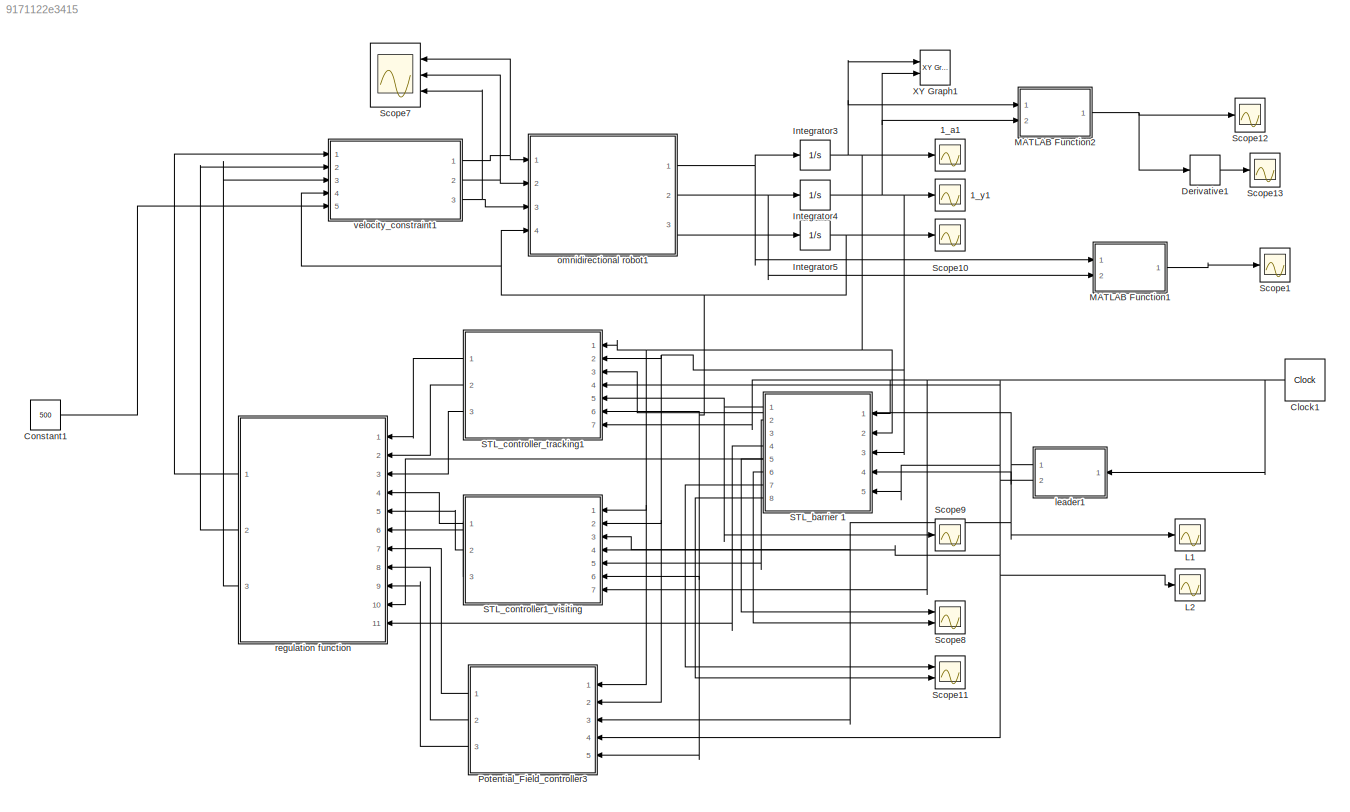
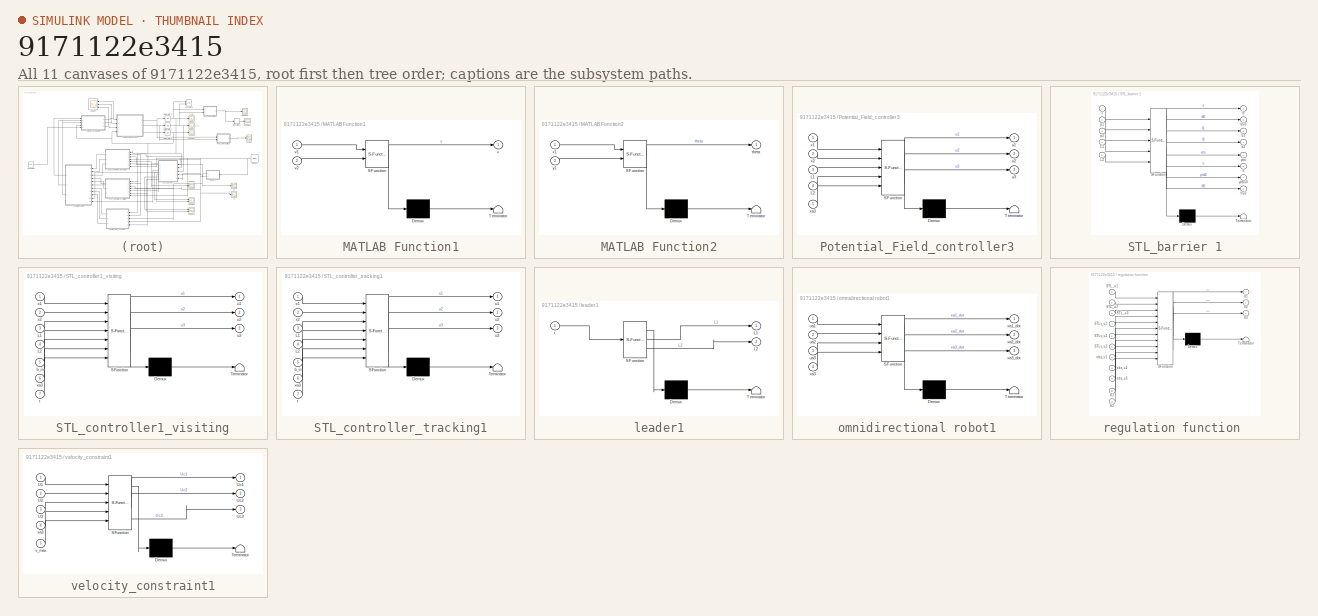
[diagram: thumbnail index - all 11 canvases of the model, root first then tree order]
MODEL slx_9171122e3415
KIND model
CONFIG AbsTol = auto
CONFIG EnableMultiTasking = off
CONFIG FixedStep = 1e-2
CONFIG MaxStep = auto
CONFIG MinStep = auto
CONFIG RelTol = 1e-3
CONFIG SampleTimeConstraint = Unconstrained
CONFIG Solver = FixedStepAuto
CONFIG SolverName = FixedStepAuto
CONFIG StartTime = 0.0
CONFIG StopTime = 60.0
BLOCK [Scope] 1_a1
  Floating = off
  NumInputPorts = 1
  Ports = [1]
  ScopeSpecificationString = Simulink.scopes.TimeScopeBlockCfg('CurrentConfiguration', extmgr.ConfigurationSet(extmgr.Configuration('Core','General UI',true),extmgr.Configuration('Core','Source UI',true),extmgr.Configuration('Sources','WiredSimulink',true,'DataLogging',true,'DataLoggingVariableName','x1','DataLoggingSaveFormat','StructureWithTime'),extmgr.Configuration('Visuals','Time Domain',true,'SerializedDisplays',{struct...<+1475ch>
BLOCK [Scope] 1_y1
  Floating = off
  NumInputPorts = 1
  Ports = [1]
  ScopeSpecificationString = Simulink.scopes.TimeScopeBlockCfg('CurrentConfiguration', extmgr.ConfigurationSet(extmgr.Configuration('Core','General UI',true),extmgr.Configuration('Core','Source UI',true),extmgr.Configuration('Sources','WiredSimulink',true,'DataLoggingVariableName','x2','DataLogging',true,'DataLoggingSaveFormat','StructureWithTime'),extmgr.Configuration('Visuals','Time Domain',true,'SerializedDisplays',{struct...<+1471ch>
BLOCK [Clock] Clock1
  DisplayTime = on
BLOCK [Constant] Constant1
  Value = 500
BLOCK [Derivative] Derivative1
BLOCK [Integrator] Integrator3
  Ports = [1, 1]
BLOCK [Integrator] Integrator4
  InitialCondition = 5
  Ports = [1, 1]
BLOCK [Integrator] Integrator5
  Ports = [1, 1]
BLOCK [Scope] L1
  Floating = off
  NumInputPorts = 1
  Ports = [1]
  ScopeSpecificationString = Simulink.scopes.TimeScopeBlockCfg('CurrentConfiguration', extmgr.ConfigurationSet(extmgr.Configuration('Core','General UI',true),extmgr.Configuration('Core','Source UI',true),extmgr.Configuration('Sources','WiredSimulink',true,'DataLoggingVariableName','L1','DataLogging',true,'DataLoggingSaveFormat','StructureWithTime'),extmgr.Configuration('Visuals','Time Domain',true,'SerializedDisplays',{struct...<+1443ch>
BLOCK [Scope] L2
  Floating = off
  NumInputPorts = 1
  Ports = [1]
  ScopeSpecificationString = Simulink.scopes.TimeScopeBlockCfg('CurrentConfiguration', extmgr.ConfigurationSet(extmgr.Configuration('Core','General UI',true),extmgr.Configuration('Core','Source UI',true),extmgr.Configuration('Sources','WiredSimulink',true,'DataLoggingVariableName','L2','DataLogging',true,'DataLoggingSaveFormat','StructureWithTime'),extmgr.Configuration('Visuals','Time Domain',true,'SerializedDisplays',{struct...<+1406ch>
BLOCK [SubSystem] MATLAB Function1
  ErrorFcn = Stateflow.Translate.translate
  PermitHierarchicalResolution = ExplicitOnly
  Ports = [2, 1]
  RequestExecContextInheritance = off
  SFBlockType = MATLAB Function
  TreatAsAtomicUnit = on
BLOCK [Demux] MATLAB Function1/ Demux 
  Outputs = 1
  Ports = [1, 1]
BLOCK [S-Function] MATLAB Function1/ SFunction 
  EnableBusSupport = on
  FunctionName = sf_sfun
  PortCounts = [2 2]
  Ports = [2, 2]
  SFcnIsStateOwnerBlock = off
  SFunctionDeploymentMode = off
  Tag = Stateflow S-Function scenario_2_TIV_R2019a 20
BLOCK [Terminator] MATLAB Function1/ Terminator 
BLOCK [Outport] MATLAB Function1/v
  VectorParamsAs1DForOutWhenUnconnected = off
BLOCK [Inport] MATLAB Function1/v1
BLOCK [Inport] MATLAB Function1/v2
  Port = 2
BLOCK [SubSystem] MATLAB Function2
  ErrorFcn = Stateflow.Translate.translate
  PermitHierarchicalResolution = ExplicitOnly
  Ports = [2, 1]
  RequestExecContextInheritance = off
  SFBlockType = MATLAB Function
  TreatAsAtomicUnit = on
BLOCK [Demux] MATLAB Function2/ Demux 
  Outputs = 1
  Ports = [1, 1]
BLOCK [S-Function] MATLAB Function2/ SFunction 
  EnableBusSupport = on
  FunctionName = sf_sfun
  PortCounts = [2 2]
  Ports = [2, 2]
  SFcnIsStateOwnerBlock = off
  SFunctionDeploymentMode = off
  Tag = Stateflow S-Function scenario_2_TIV_R2019a 43
BLOCK [Terminator] MATLAB Function2/ Terminator 
BLOCK [Outport] MATLAB Function2/theta
  VectorParamsAs1DForOutWhenUnconnected = off
BLOCK [Inport] MATLAB Function2/x1
BLOCK [Inport] MATLAB Function2/y1
  Port = 2
BLOCK [SubSystem] Potential_Field_controller3
  ErrorFcn = Stateflow.Translate.translate
  PermitHierarchicalResolution = ExplicitOnly
  Ports = [5, 3]
  RequestExecContextInheritance = off
  SFBlockType = MATLAB Function
  TreatAsAtomicUnit = on
BLOCK [Demux] Potential_Field_controller3/ Demux 
  Outputs = 1
  Ports = [1, 1]
BLOCK [S-Function] Potential_Field_controller3/ SFunction 
  EnableBusSupport = on
  FunctionName = sf_sfun
  PortCounts = [5 4]
  Ports = [5, 4]
  SFcnIsStateOwnerBlock = off
  SFunctionDeploymentMode = off
  Tag = Stateflow S-Function scenario_2_TIV_R2019a 44
BLOCK [Terminator] Potential_Field_controller3/ Terminator 
BLOCK [Inport] Potential_Field_controller3/L1
  Port = 3
BLOCK [Inport] Potential_Field_controller3/L2
  Port = 4
BLOCK [Outport] Potential_Field_controller3/u1
BLOCK [Outport] Potential_Field_controller3/u2
  Port = 2
BLOCK [Outport] Potential_Field_controller3/u3
  Port = 3
BLOCK [Inport] Potential_Field_controller3/x1
BLOCK [Inport] Potential_Field_controller3/x2
  Port = 2
BLOCK [Inport] Potential_Field_controller3/xa3
  Port = 5
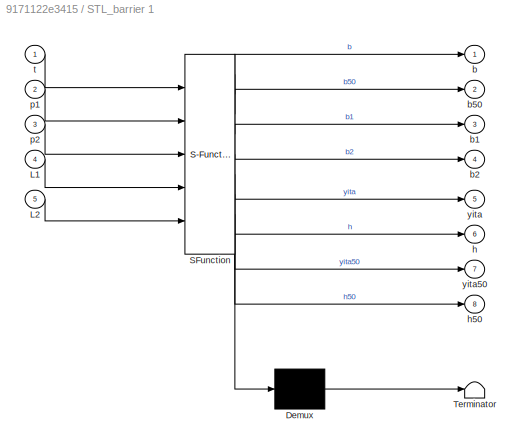
BLOCK [SubSystem] STL_barrier 1
  ErrorFcn = Stateflow.Translate.translate
  PermitHierarchicalResolution = ExplicitOnly
  Ports = [5, 8]
  RequestExecContextInheritance = off
  SFBlockType = MATLAB Function
  TreatAsAtomicUnit = on
BLOCK [Demux] STL_barrier 1/ Demux 
  Outputs = 1
  Ports = [1, 1]
BLOCK [S-Function] STL_barrier 1/ SFunction 
  EnableBusSupport = on
  FunctionName = sf_sfun
  PortCounts = [5 9]
  Ports = [5, 9]
  SFcnIsStateOwnerBlock = off
  SFunctionDeploymentMode = off
  Tag = Stateflow S-Function scenario_2_TIV_R2019a 45
BLOCK [Terminator] STL_barrier 1/ Terminator 
BLOCK [Inport] STL_barrier 1/L1
  Port = 4
BLOCK [Inport] STL_barrier 1/L2
  Port = 5
BLOCK [Outport] STL_barrier 1/b
BLOCK [Outport] STL_barrier 1/b1
  Port = 3
BLOCK [Outport] STL_barrier 1/b2
  Port = 4
BLOCK [Outport] STL_barrier 1/b50
  Port = 2
BLOCK [Outport] STL_barrier 1/h
  Port = 6
  VectorParamsAs1DForOutWhenUnconnected = off
BLOCK [Outport] STL_barrier 1/h50
  Port = 8
BLOCK [Inport] STL_barrier 1/p1
  Port = 2
BLOCK [Inport] STL_barrier 1/p2
  Port = 3
BLOCK [Inport] STL_barrier 1/t
BLOCK [Outport] STL_barrier 1/yita
  Port = 5
  VectorParamsAs1DForOutWhenUnconnected = off
BLOCK [Outport] STL_barrier 1/yita50
  Port = 7
BLOCK [SubSystem] STL_controller1_visiting
  ErrorFcn = Stateflow.Translate.translate
  PermitHierarchicalResolution = ExplicitOnly
  Ports = [7, 3]
  RequestExecContextInheritance = off
  SFBlockType = MATLAB Function
  TreatAsAtomicUnit = on
BLOCK [Demux] STL_controller1_visiting/ Demux 
  Outputs = 1
  Ports = [1, 1]
BLOCK [S-Function] STL_controller1_visiting/ SFunction 
  EnableBusSupport = on
  FunctionName = sf_sfun
  PortCounts = [7 4]
  Ports = [7, 4]
  SFcnIsStateOwnerBlock = off
  SFunctionDeploymentMode = off
  Tag = Stateflow S-Function scenario_2_TIV_R2019a 46
BLOCK [Terminator] STL_controller1_visiting/ Terminator 
BLOCK [Inport] STL_controller1_visiting/L1
  Port = 3
BLOCK [Inport] STL_controller1_visiting/L2
  Port = 4
BLOCK [Inport] STL_controller1_visiting/b_in
  Port = 5
BLOCK [Inport] STL_controller1_visiting/t
  Port = 7
BLOCK [Outport] STL_controller1_visiting/u1
BLOCK [Outport] STL_controller1_visiting/u2
  Port = 2
BLOCK [Outport] STL_controller1_visiting/u3
  Port = 3
BLOCK [Inport] STL_controller1_visiting/x1
BLOCK [Inport] STL_controller1_visiting/x2
  Port = 2
BLOCK [Inport] STL_controller1_visiting/xa3
  Port = 6
BLOCK [SubSystem] STL_controller_tracking1
  ErrorFcn = Stateflow.Translate.translate
  PermitHierarchicalResolution = ExplicitOnly
  Ports = [7, 3]
  RequestExecContextInheritance = off
  SFBlockType = MATLAB Function
  TreatAsAtomicUnit = on
BLOCK [Demux] STL_controller_tracking1/ Demux 
  Outputs = 1
  Ports = [1, 1]
BLOCK [S-Function] STL_controller_tracking1/ SFunction 
  EnableBusSupport = on
  FunctionName = sf_sfun
  PortCounts = [7 4]
  Ports = [7, 4]
  SFcnIsStateOwnerBlock = off
  SFunctionDeploymentMode = off
  Tag = Stateflow S-Function scenario_2_TIV_R2019a 47
BLOCK [Terminator] STL_controller_tracking1/ Terminator 
BLOCK [Inport] STL_controller_tracking1/L1
  Port = 3
BLOCK [Inport] STL_controller_tracking1/L2
  Port = 4
BLOCK [Inport] STL_controller_tracking1/b_in
  Port = 5
BLOCK [Inport] STL_controller_tracking1/t
  Port = 7
BLOCK [Outport] STL_controller_tracking1/u1
BLOCK [Outport] STL_controller_tracking1/u2
  Port = 2
BLOCK [Outport] STL_controller_tracking1/u3
  Port = 3
BLOCK [Inport] STL_controller_tracking1/x1
BLOCK [Inport] STL_controller_tracking1/x2
  Port = 2
BLOCK [Inport] STL_controller_tracking1/xa3
  Port = 6
BLOCK [Scope] Scope1
  Floating = off
  NumInputPorts = 1
  Ports = [1]
  ScopeSpecificationString = Simulink.scopes.TimeScopeBlockCfg('CurrentConfiguration', extmgr.ConfigurationSet(extmgr.Configuration('Core','General UI',true),extmgr.Configuration('Core','Source UI',true),extmgr.Configuration('Sources','WiredSimulink',true,'DataLoggingVariableName','ScopeData1'),extmgr.Configuration('Visuals','Time Domain',true,'SerializedDisplays',{struct('MinYLimReal','-9.29684','MaxYLimReal','85.93095','YLa...<+1453ch>
BLOCK [Scope] Scope10
  Floating = off
  NumInputPorts = 1
  Ports = [1]
  ScopeSpecificationString = Simulink.scopes.TimeScopeBlockCfg('CurrentConfiguration', extmgr.ConfigurationSet(extmgr.Configuration('Core','General UI',true),extmgr.Configuration('Core','Source UI',true),extmgr.Configuration('Sources','WiredSimulink',true,'DataLoggingVariableName','ScopeData5'),extmgr.Configuration('Visuals','Time Domain',true,'SerializedDisplays',{struct('MinYLimReal','-0.50401','MaxYLimReal','4.53607','YLab...<+1448ch>
BLOCK [Scope] Scope11
  Floating = off
  NumInputPorts = 2
  Ports = [2]
  ScopeSpecificationString = Simulink.scopes.TimeScopeBlockCfg('CurrentConfiguration', extmgr.ConfigurationSet(extmgr.Configuration('Core','General UI',true),extmgr.Configuration('Core','Source UI',true),extmgr.Configuration('Sources','WiredSimulink',true,'DataLoggingVariableName','gamma_h_visiting','DataLogging',true,'DataLoggingSaveFormat','StructureWithTime'),extmgr.Configuration('Visuals','Time Domain',true,'SerializedDis...<+1615ch>
BLOCK [Scope] Scope12
  Floating = off
  NumInputPorts = 1
  Ports = [1]
  ScopeSpecificationString = Simulink.scopes.TimeScopeBlockCfg('CurrentConfiguration', extmgr.ConfigurationSet(extmgr.Configuration('Core','General UI',true),extmgr.Configuration('Core','Source UI',true),extmgr.Configuration('Sources','WiredSimulink',true,'DataLoggingVariableName','ScopeData7'),extmgr.Configuration('Visuals','Time Domain',true,'SerializedDisplays',{struct('MinYLimReal','-3.92673','MaxYLimReal','3.92487','YLab...<+1447ch>
BLOCK [Scope] Scope13
  Floating = off
  NumInputPorts = 1
  Ports = [1]
  ScopeSpecificationString = Simulink.scopes.TimeScopeBlockCfg('CurrentConfiguration', extmgr.ConfigurationSet(extmgr.Configuration('Core','General UI',true),extmgr.Configuration('Core','Source UI',true),extmgr.Configuration('Sources','WiredSimulink',true,'DataLoggingVariableName','ScopeData8'),extmgr.Configuration('Visuals','Time Domain',true,'SerializedDisplays',{struct('MinYLimReal','-80.8602','MaxYLimReal','705.90103','YL...<+1453ch>
BLOCK [Scope] Scope7
  Floating = off
  NumInputPorts = 3
  Ports = [3]
  ScopeSpecificationString = Simulink.scopes.TimeScopeBlockCfg('CurrentConfiguration', extmgr.ConfigurationSet(extmgr.Configuration('Core','General UI',true),extmgr.Configuration('Core','Source UI',true),extmgr.Configuration('Sources','WiredSimulink',true,'DataLoggingVariableName','U3','DataLogging',true,'DataLoggingSaveFormat','StructureWithTime'),extmgr.Configuration('Visuals','Time Domain',true,'SerializedDisplays',{struct...<+1609ch>
BLOCK [Scope] Scope8
  Floating = off
  NumInputPorts = 2
  Ports = [2]
  ScopeSpecificationString = Simulink.scopes.TimeScopeBlockCfg('CurrentConfiguration', extmgr.ConfigurationSet(extmgr.Configuration('Core','General UI',true),extmgr.Configuration('Core','Source UI',true),extmgr.Configuration('Sources','WiredSimulink',true,'DataLoggingVariableName','gamma_h_tracking','DataLogging',true,'DataLoggingSaveFormat','StructureWithTime'),extmgr.Configuration('Visuals','Time Domain',true,'SerializedDis...<+1860ch>
BLOCK [Scope] Scope9
  Floating = off
  NumInputPorts = 1
  Ports = [1]
  ScopeSpecificationString = Simulink.scopes.TimeScopeBlockCfg('CurrentConfiguration', extmgr.ConfigurationSet(extmgr.Configuration('Core','General UI',true),extmgr.Configuration('Core','Source UI',true),extmgr.Configuration('Sources','WiredSimulink',true),extmgr.Configuration('Visuals','Time Domain',true,'SerializedDisplays',{struct('MinYLimReal','-86.93912','MaxYLimReal','9.6599','YLabelReal','','MinYLimMag','0.00000','MaxY...<+1412ch>
BLOCK [Reference] XY Graph1  REF=simulink/Sinks/XY Graph
  Ports = [2]
  SourceBlock = simulink/Sinks/XY Graph
  SourceProductBaseCode = SL
  SourceType = XY scope.
BLOCK [SubSystem] leader1
  ErrorFcn = Stateflow.Translate.translate
  PermitHierarchicalResolution = ExplicitOnly
  Ports = [1, 2]
  RequestExecContextInheritance = off
  SFBlockType = MATLAB Function
  TreatAsAtomicUnit = on
BLOCK [Demux] leader1/ Demux 
  Outputs = 1
  Ports = [1, 1]
BLOCK [S-Function] leader1/ SFunction 
  EnableBusSupport = on
  FunctionName = sf_sfun
  PortCounts = [1 3]
  Ports = [1, 3]
  SFcnIsStateOwnerBlock = off
  SFunctionDeploymentMode = off
  Tag = Stateflow S-Function scenario_2_TIV_R2019a 48
BLOCK [Terminator] leader1/ Terminator 
BLOCK [Outport] leader1/L1
BLOCK [Outport] leader1/L2
  Port = 2
BLOCK [Inport] leader1/t
BLOCK [SubSystem] omnidirectional robot1
  ErrorFcn = Stateflow.Translate.translate
  PermitHierarchicalResolution = ExplicitOnly
  Ports = [4, 3]
  RequestExecContextInheritance = off
  SFBlockType = MATLAB Function
  TreatAsAtomicUnit = on
BLOCK [Demux] omnidirectional robot1/ Demux 
  Outputs = 1
  Ports = [1, 1]
BLOCK [S-Function] omnidirectional robot1/ SFunction 
  EnableBusSupport = on
  FunctionName = sf_sfun
  PortCounts = [4 4]
  Ports = [4, 4]
  SFcnIsStateOwnerBlock = off
  SFunctionDeploymentMode = off
  Tag = Stateflow S-Function scenario_2_TIV_R2019a 49
BLOCK [Terminator] omnidirectional robot1/ Terminator 
BLOCK [Inport] omnidirectional robot1/ua1
BLOCK [Inport] omnidirectional robot1/ua2
  Port = 2
BLOCK [Inport] omnidirectional robot1/ua3
  Port = 3
BLOCK [Outport] omnidirectional robot1/xa1_dot
BLOCK [Outport] omnidirectional robot1/xa2_dot
  Port = 2
BLOCK [Inport] omnidirectional robot1/xa3
  Port = 4
BLOCK [Outport] omnidirectional robot1/xa3_dot
  Port = 3
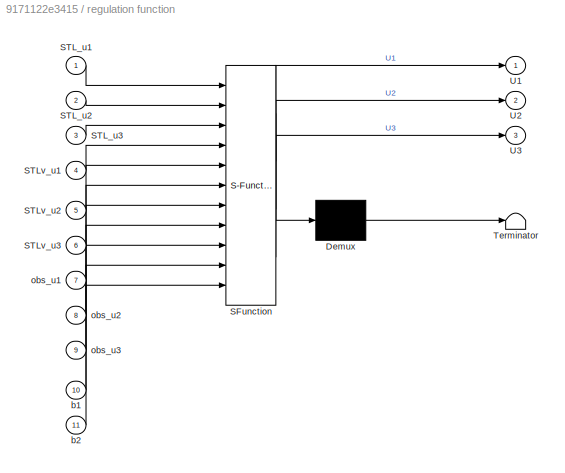
BLOCK [SubSystem] regulation function 
  ErrorFcn = Stateflow.Translate.translate
  PermitHierarchicalResolution = ExplicitOnly
  Ports = [11, 3]
  RequestExecContextInheritance = off
  SFBlockType = MATLAB Function
  TreatAsAtomicUnit = on
BLOCK [Demux] regulation function / Demux 
  Outputs = 1
  Ports = [1, 1]
BLOCK [S-Function] regulation function / SFunction 
  EnableBusSupport = on
  FunctionName = sf_sfun
  PortCounts = [11 4]
  Ports = [11, 4]
  SFcnIsStateOwnerBlock = off
  SFunctionDeploymentMode = off
  Tag = Stateflow S-Function scenario_2_TIV_R2019a 50
BLOCK [Terminator] regulation function / Terminator 
BLOCK [Inport] regulation function /STL_u1
BLOCK [Inport] regulation function /STL_u2
  Port = 2
BLOCK [Inport] regulation function /STL_u3
  Port = 3
BLOCK [Inport] regulation function /STLv_u1
  Port = 4
BLOCK [Inport] regulation function /STLv_u2
  Port = 5
BLOCK [Inport] regulation function /STLv_u3
  Port = 6
BLOCK [Outport] regulation function /U1
BLOCK [Outport] regulation function /U2
  Port = 2
BLOCK [Outport] regulation function /U3
  Port = 3
BLOCK [Inport] regulation function /b1
  Port = 10
BLOCK [Inport] regulation function /b2
  Port = 11
BLOCK [Inport] regulation function /obs_u1
  Port = 7
BLOCK [Inport] regulation function /obs_u2
  Port = 8
BLOCK [Inport] regulation function /obs_u3
  Port = 9
BLOCK [SubSystem] velocity_constraint1
  ErrorFcn = Stateflow.Translate.translate
  PermitHierarchicalResolution = ExplicitOnly
  Ports = [5, 3]
  RequestExecContextInheritance = off
  SFBlockType = MATLAB Function
  TreatAsAtomicUnit = on
BLOCK [Demux] velocity_constraint1/ Demux 
  Outputs = 1
  Ports = [1, 1]
BLOCK [S-Function] velocity_constraint1/ SFunction 
  EnableBusSupport = on
  FunctionName = sf_sfun
  PortCounts = [5 4]
  Ports = [5, 4]
  SFcnIsStateOwnerBlock = off
  SFunctionDeploymentMode = off
  Tag = Stateflow S-Function scenario_2_TIV_R2019a 51
BLOCK [Terminator] velocity_constraint1/ Terminator 
BLOCK [Inport] velocity_constraint1/U1
BLOCK [Inport] velocity_constraint1/U2
  Port = 2
BLOCK [Inport] velocity_constraint1/U3
  Port = 3
BLOCK [Outport] velocity_constraint1/Uc1
BLOCK [Outport] velocity_constraint1/Uc2
  Port = 2
BLOCK [Outport] velocity_constraint1/Uc3
  Port = 3
BLOCK [Inport] velocity_constraint1/v_max
  Port = 5
BLOCK [Inport] velocity_constraint1/xa3
  Port = 4
NET Clock1:1 -> STL_barrier 1:1, STL_controller1_visiting:7, STL_controller_tracking1:7, leader1:1
LINE Constant1:1 -> velocity_constraint1:5
LINE Derivative1:1 -> Scope13:1
NET Integrator3:1 -> 1_a1:1, MATLAB Function2:1, Potential_Field_controller3:1, STL_barrier 1:2, STL_controller1_visiting:1, STL_controller_tracking1:1, XY Graph1:1
NET Integrator4:1 -> 1_y1:1, MATLAB Function2:2, Potential_Field_controller3:2, STL_barrier 1:3, STL_controller1_visiting:2, STL_controller_tracking1:2, XY Graph1:2
NET Integrator5:1 -> Potential_Field_controller3:5, STL_controller1_visiting:6, STL_controller_tracking1:6, Scope10:1, omnidirectional robot1:4, velocity_constraint1:4
LINE MATLAB Function1:1 -> Scope1:1
NET MATLAB Function2:1 -> Derivative1:1, Scope12:1
LINE Potential_Field_controller3:1 -> regulation function :7
LINE Potential_Field_controller3:2 -> regulation function :8
LINE Potential_Field_controller3:3 -> regulation function :9
NET STL_barrier 1:1 -> STL_controller_tracking1:5, Scope9:1
LINE STL_barrier 1:2 -> STL_controller1_visiting:5
LINE STL_barrier 1:3 -> regulation function :10
LINE STL_barrier 1:4 -> regulation function :11
LINE STL_barrier 1:5 -> Scope8:1
LINE STL_barrier 1:6 -> Scope8:2
LINE STL_barrier 1:7 -> Scope11:1
LINE STL_barrier 1:8 -> Scope11:2
LINE STL_controller1_visiting:1 -> regulation function :4
LINE STL_controller1_visiting:2 -> regulation function :5
LINE STL_controller1_visiting:3 -> regulation function :6
LINE STL_controller_tracking1:1 -> regulation function :1
LINE STL_controller_tracking1:2 -> regulation function :2
LINE STL_controller_tracking1:3 -> regulation function :3
NET leader1:1 -> L1:1, Potential_Field_controller3:3, STL_barrier 1:4, STL_controller1_visiting:3, STL_controller_tracking1:3
NET leader1:2 -> L2:1, Potential_Field_controller3:4, STL_barrier 1:5, STL_controller1_visiting:4, STL_controller_tracking1:4
NET omnidirectional robot1:1 -> Integrator3:1, MATLAB Function1:1
NET omnidirectional robot1:2 -> Integrator4:1, MATLAB Function1:2
LINE omnidirectional robot1:3 -> Integrator5:1
LINE regulation function :1 -> velocity_constraint1:1
LINE regulation function :2 -> velocity_constraint1:2
LINE regulation function :3 -> velocity_constraint1:3
NET velocity_constraint1:1 -> Scope7:1, omnidirectional robot1:1
NET velocity_constraint1:2 -> Scope7:2, omnidirectional robot1:2
NET velocity_constraint1:3 -> Scope7:3, omnidirectional robot1:3
note: NET lines group one-source signal fan-out (src -> all destinations, sorted); 1:1 wires keep LINE
CHART MATLAB Function1 states=1 transitions=1
  STATE_LABEL 'eML_blk_kernel()'
  STATE_LABEL 'SCRIPT:\nfunction v = fcn(v1, v2)\nv=sqrt(v1^2+v2^2);\n\n'
CHART MATLAB Function2 states=1 transitions=1
  STATE_LABEL 'eML_blk_kernel()'
  STATE_LABEL 'SCRIPT:\nfunction theta = fcn(x1, y1)\ntheta=atan2(y1,x1);\n\n'
CHART Potential_Field_controller3 states=1 transitions=1
  STATE_LABEL 'eML_blk_kernel()'
  STATE_LABEL "SCRIPT:\nfunction [u1,u2,u3] = fcn(x1, x2,L1,L2, xa3)\ncoder.extrinsic('Calculate_gradient');\ncoder.extrinsic('Calculate_gradient_x15');\ncoder.extrinsic('PVF_optimizer');\ncoder.extrinsic('add_random');\nA1=[-1,0;0,-1];\nF=[2*L1,2*L2];\ndistance=sqrt((x1-90)^2+(x2-90)^2);\n\ngradient_x=0;gradient_y=0;\ngradient_x5=0;gradient_y5=0;\n[gradient_x,gradient_y]=Calculate_gradient(x1,x2,A1,F,0,30,8);\n% gradient_x=...<+537ch>"
CHART STL_barrier 1 states=1 transitions=1
  STATE_LABEL 'eML_blk_kernel()'
  STATE_LABEL 'SCRIPT:\nfunction [b,b50,b1,b2,yita,h,yita50,h50] = fcn(t,p1,p2,L1,L2)\nd1=L1;\nd2=L2;\n\nd11=50;\nd22=0;\n\nd111=0;d222=30;\n\nb=25*exp(-0.32*t)+5-sqrt( (p1-d1)^2 + (p2-d2)^2 ); %STL_tracking\nyita=-25*exp(-0.32*t)+10;\nh=15-sqrt( (p1-d1)^2 + (p2-d2)^2 );\n\n\nb50=60*exp(-0.125*(t))+5-sqrt( (p1-d11)^2 + (p2-d22)^2 );%STL_visiting \nyita50=-60*exp(-0.125*(t))+5;\nh50=10-sqrt( (p1-d11)^2 + (p2-d22)^2 );\n\n\n% b50=5-s...<+301ch>'
CHART STL_controller1_visiting states=1 transitions=1
  STATE_LABEL 'eML_blk_kernel()'
  STATE_LABEL "SCRIPT:\nfunction [u1,u2,u3]= fcn(x1, x2,L1,L2, b_in, xa3,t)\ncoder.extrinsic('quadoptimizer');\n%coder.extrinsic('save');\nd1=50; d2=0;\n\npartial_b=(1/2)*((x1-d1)^2+(x2-d2)^2)^(-1/2);\npartial_b_x=[-2*partial_b*(x1-d1),-2*partial_b*(x2-d2),0];\n\n\nLi=0.2;\nBi=[0,cos(pi/6),-cos(pi/6);\n    -1,sin(pi/6),sin(pi/6);\n    Li,Li,Li;];\n\nR1=[cos(xa3),-sin(xa3),0;\n    sin(xa3),cos(xa3),0;\n    0,0,1;];\nR=0.02;\n\ngx=R1...<+228ch>"
CHART STL_controller_tracking1 states=1 transitions=1
  STATE_LABEL 'eML_blk_kernel()'
  STATE_LABEL "SCRIPT:\nfunction [u1,u2,u3]= fcn(x1, x2,L1,L2, b_in, xa3,t)\ncoder.extrinsic('quadoptimizer');\n%coder.extrinsic('save');\nd1=L1; d2=L2;\n\npartial_b=(1/2)*((x1-d1)^2+(x2-d2)^2)^(-1/2);\npartial_b_x=[-2*partial_b*(x1-d1),-2*partial_b*(x2-d2),0];\npartial_b_L=[2*partial_b*(x1-d1),2*partial_b*(x2-d2)];\npho1=sqrt(partial_b_L(1,1)^2+partial_b_L(1,2)^2);\nLi=0.2;\nBi=[0,cos(pi/6),-cos(pi/6);\n    -1,sin(pi/6),si...<+365ch>"
CHART leader1 states=1 transitions=1
  STATE_LABEL 'eML_blk_kernel()'
  STATE_LABEL 'SCRIPT:\nfunction [L1,L2] = fcn(t)\nL1=30*sin(1*t);\nL2=30*cos(1*t);\n\n'
CHART omnidirectional robot1 states=1 transitions=1
  STATE_LABEL 'eML_blk_kernel()'
  STATE_LABEL "SCRIPT:\nfunction [xa1_dot,xa2_dot,xa3_dot]= fcn(ua1,ua2,ua3,xa3)\n\nLi=0.2;\nBi=[0,cos(pi/6),-cos(pi/6);\n    -1,sin(pi/6),sin(pi/6);\n    Li,Li,Li;];\n\nR1=[cos(xa3),-sin(xa3),0;\n    sin(xa3),cos(xa3),0;\n    0,0,1;];\nR=0.02;\n\nA=R1*inv(Bi')*R*[ua1;ua2;ua3];\nxa1_dot=A(1,1);\nxa2_dot=A(2,1);\nxa3_dot=A(3,1);\n"
CHART regulation function  states=1 transitions=1
  STATE_LABEL 'eML_blk_kernel()'
  STATE_LABEL 'SCRIPT:\nfunction [U1,U2,U3] = fcn(STL_u1,STL_u2,STL_u3,STLv_u1,STLv_u2,STLv_u3,obs_u1,obs_u2,obs_u3,b1,b2)\nU_track=[STL_u1;STL_u2;STL_u3];\nU_visit=[STLv_u1;STLv_u2;STLv_u3];\nU_obs=[obs_u1;obs_u2;obs_u3];\n\nk=0.065;\nlambda=1-exp(-k*max(b1,0));\nU_goal=lambda*U_track+(1-lambda)*U_visit;\n% U_goal=[0;0;0];\n% U_goal=U_track;\nj=0.15;\ngamma=1-exp(-j*max(b2,0));\nU=gamma*U_goal+(1-gamma)*U_obs;\n\n% U=U_goal;\n...<+50ch>'
CHART velocity_constraint1 states=1 transitions=1
  STATE_LABEL 'eML_blk_kernel()'
  STATE_LABEL "SCRIPT:\nfunction [Uc1,Uc2,Uc3] = fcn(U1,U2,U3,xa3,v_max)\n\nLi=0.2;\nBi=[0,cos(pi/6),-cos(pi/6);\n    -1,sin(pi/6),sin(pi/6);\n    Li,Li,Li;];\n\nR1=[cos(xa3),-sin(xa3),0;\n    sin(xa3),cos(xa3),0;\n    0,0,1;];\nR=0.02;\ngx=R1*inv(Bi')*R;\n\nU=[U1;U2;U3];\nV=[0;0;0];\nV=gx*U;\nif V(1,1)^2+V(2,1)^2<=v_max^2\n     U(1,1)= U(1,1);\n     U(2,1)= U(2,1);\nelse \n    U(1,1)=sqrt(v_max^2/(V(1,1)^2+V(2,1)^2))*U(1,1);\n    U(...<+140ch>"
